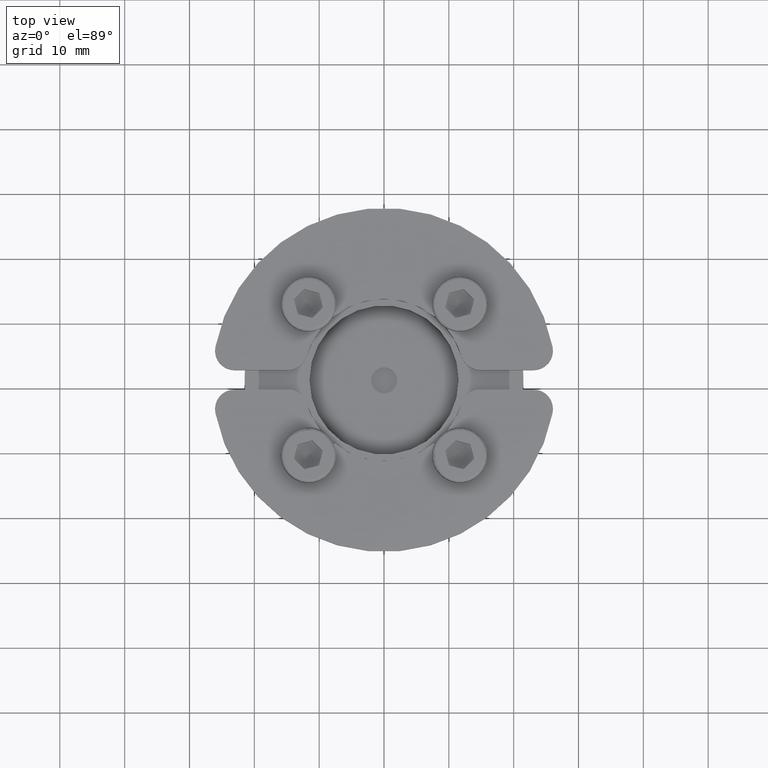
[diagram: clean part render]
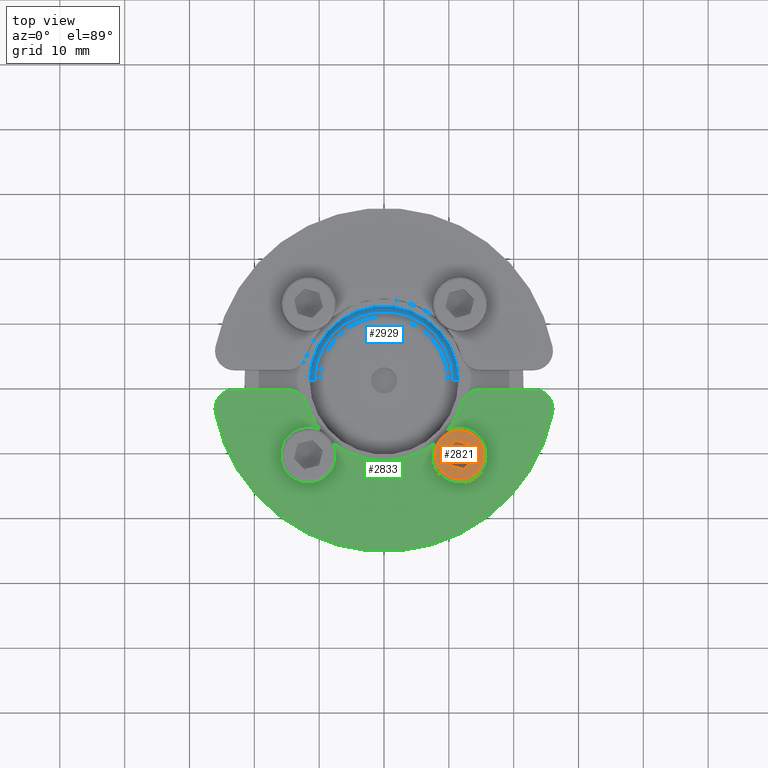
[diagram: same view with three faces highlighted in distinct colors, each labeled with its STEP entity id]
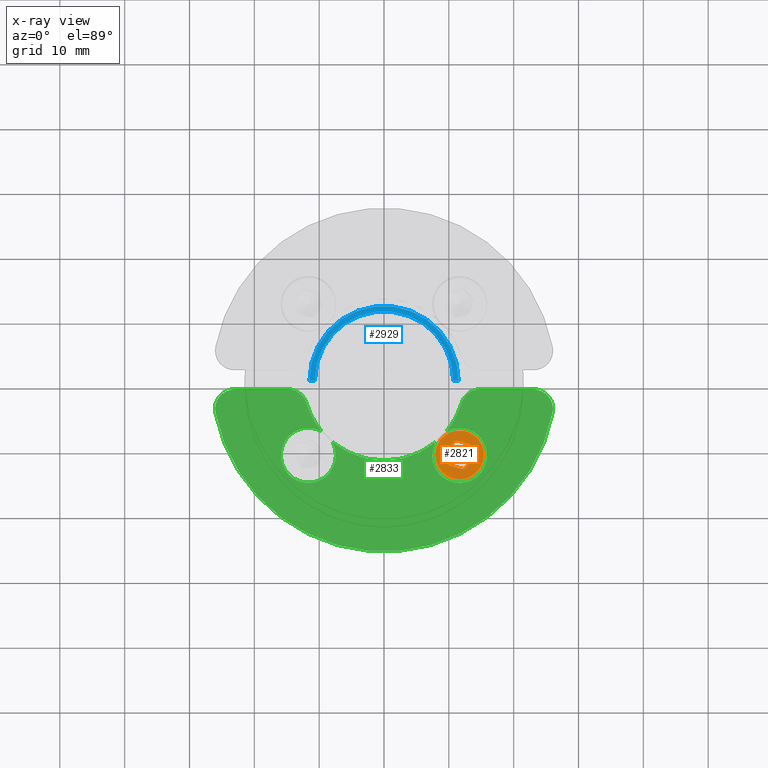
[diagram: x-ray of the same camera — body ghosted, the three highlighted faces saturated]
A machine part, top view with three faces highlighted in distinct colors.
The next image is the same camera in x-ray (body ghosted, the three faces saturated) — at least one of them is partly hidden behind the body in this view.
Their STEP definitions:

[orange] entity #2821 — the highlighted planar face has unit normal (0, -0, 1).
#19=FACE_BOUND('',#686,.T.);
#86=LINE('',#4412,#276);
#89=LINE('',#4417,#279);
#90=LINE('',#4420,#280);
#92=LINE('',#4424,#282);
#94=LINE('',#4428,#284);
#96=LINE('',#4431,#286);
#276=VECTOR('',#3447,10.);
#279=VECTOR('',#3452,10.);
#280=VECTOR('',#3455,10.);
#282=VECTOR('',#3459,10.);
#284=VECTOR('',#3463,10.);
#286=VECTOR('',#3467,10.);
#514=FACE_OUTER_BOUND('',#685,.T.);
#685=EDGE_LOOP('',(#1814,#1815));
#686=EDGE_LOOP('',(#1816,#1817,#1818,#1819,#1820,#1821));
#866=CIRCLE('',#3038,3.75);
#867=CIRCLE('',#3039,3.75);
#1075=VERTEX_POINT('',#4409);
#1076=VERTEX_POINT('',#4411);
#1077=VERTEX_POINT('',#4415);
#1078=VERTEX_POINT('',#4419);
#1079=VERTEX_POINT('',#4423);
#1080=VERTEX_POINT('',#4427);
#1088=VERTEX_POINT('',#4449);
#1089=VERTEX_POINT('',#4450);
#1339=EDGE_CURVE('',#1076,#1075,#86,.T.);
#1342=EDGE_CURVE('',#1075,#1077,#89,.T.);
#1343=EDGE_CURVE('',#1078,#1076,#90,.T.);
#1345=EDGE_CURVE('',#1079,#1078,#92,.T.);
#1347=EDGE_CURVE('',#1080,#1079,#94,.T.);
#1349=EDGE_CURVE('',#1077,#1080,#96,.T.);
#1358=EDGE_CURVE('',#1088,#1089,#866,.T.);
#1359=EDGE_CURVE('',#1089,#1088,#867,.T.);
#1814=ORIENTED_EDGE('',*,*,#1358,.F.);
#1815=ORIENTED_EDGE('',*,*,#1359,.F.);
#1816=ORIENTED_EDGE('',*,*,#1345,.T.);
#1817=ORIENTED_EDGE('',*,*,#1343,.T.);
#1818=ORIENTED_EDGE('',*,*,#1339,.T.);
#1819=ORIENTED_EDGE('',*,*,#1342,.T.);
#1820=ORIENTED_EDGE('',*,*,#1349,.T.);
#1821=ORIENTED_EDGE('',*,*,#1347,.T.);
#2530=PLANE('',#3037);
#2821=ADVANCED_FACE('',(#514,#19),#2530,.T.);
#3037=AXIS2_PLACEMENT_3D('',#4448,#3485,#3486);
#3038=AXIS2_PLACEMENT_3D('',#4451,#3487,#3488);
#3039=AXIS2_PLACEMENT_3D('',#4452,#3489,#3490);
#3447=DIRECTION('',(-0.258819045102521,0.965925826289068,6.4917715706085E-16));
#3452=DIRECTION('',(0.707106781186548,0.707106781186547,2.31843130983024E-16));
#3455=DIRECTION('',(-0.965925826289068,0.25881904510252,4.17334026077825E-16));
#3459=DIRECTION('',(-0.707106781186547,-0.707106781186548,-2.31843130983024E-16));
#3463=DIRECTION('',(0.258819045102521,-0.965925826289068,-6.4917715706085E-16));
#3467=DIRECTION('',(0.965925826289068,-0.258819045102521,-4.17334026077825E-16));
#3485=DIRECTION('center_axis',(2.71463517187339E-16,-5.99339217366573E-16,
1.));
#3486=DIRECTION('ref_axis',(-0.707106781186548,-0.707106781186547,-2.31843130983024E-16));
#3487=DIRECTION('center_axis',(-2.71463517187339E-16,5.99339217366573E-16,
-1.));
#3488=DIRECTION('ref_axis',(-0.707106781186547,0.707106781186548,6.1575051867886E-16));
#3489=DIRECTION('center_axis',(-2.71463517187339E-16,5.99339217366573E-16,
-1.));
#3490=DIRECTION('ref_axis',(-0.707106781186547,0.707106781186548,6.1575051867886E-16));
#4409=CARTESIAN_POINT('',(9.43655174627722,-11.0695449081327,7.5));
#4411=CARTESIAN_POINT('',(10.0342687277226,-13.3002550514335,7.5));
#4412=CARTESIAN_POINT('',(9.58598099163857,-11.6272224439579,7.5));
#4415=CARTESIAN_POINT('',(11.0695449081327,-9.43655174627722,7.5));
#4417=CARTESIAN_POINT('',(10.6612966176688,-9.84480003674108,7.5));
#4419=CARTESIAN_POINT('',(12.2649788710234,-13.8979720328789,7.5));
#4420=CARTESIAN_POINT('',(10.5919462635478,-13.4496842967948,7.5));
#4423=CARTESIAN_POINT('',(13.8979720328789,-12.2649788710234,7.5));
#4424=CARTESIAN_POINT('',(12.6732271614873,-13.489723742415,7.5));
#4427=CARTESIAN_POINT('',(13.3002550514335,-10.0342687277226,7.5));
#4428=CARTESIAN_POINT('',(13.7485427875175,-11.7073013351982,7.5));
#4431=CARTESIAN_POINT('',(12.7425775156083,-9.88483948236125,7.5));
#4448=CARTESIAN_POINT('Origin',(13.9863603805272,-13.9863603805272,7.5));
#4449=CARTESIAN_POINT('',(14.3189123190276,-14.3189123190276,7.5));
#4450=CARTESIAN_POINT('',(9.01561146012849,-14.3189123190276,7.49999999999999));
#4451=CARTESIAN_POINT('Origin',(11.667261889578,-11.667261889578,7.5));
#4452=CARTESIAN_POINT('Origin',(11.667261889578,-11.667261889578,7.5));

[blue] entity #2929 — the highlighted planar face has unit normal (0, 0, 1).
#134=LINE('',#4588,#324);
#135=LINE('',#4592,#325);
#324=VECTOR('',#3637,10.);
#325=VECTOR('',#3640,10.);
#622=FACE_OUTER_BOUND('',#799,.T.);
#799=EDGE_LOOP('',(#2342,#2343,#2344,#2345));
#991=CIRCLE('',#3271,11.5);
#992=CIRCLE('',#3272,10.68);
#1132=VERTEX_POINT('',#4586);
#1133=VERTEX_POINT('',#4587);
#1134=VERTEX_POINT('',#4589);
#1135=VERTEX_POINT('',#4591);
#1426=EDGE_CURVE('',#1132,#1133,#134,.T.);
#1428=EDGE_CURVE('',#1135,#1134,#135,.T.);
#1637=EDGE_CURVE('',#1132,#1134,#991,.T.);
#1638=EDGE_CURVE('',#1133,#1135,#992,.T.);
#2342=ORIENTED_EDGE('',*,*,#1428,.T.);
#2343=ORIENTED_EDGE('',*,*,#1637,.F.);
#2344=ORIENTED_EDGE('',*,*,#1426,.T.);
#2345=ORIENTED_EDGE('',*,*,#1638,.T.);
#2602=PLANE('',#3270);
#2929=ADVANCED_FACE('',(#622),#2602,.T.);
#3270=AXIS2_PLACEMENT_3D('',#5035,#4091,#4092);
#3271=AXIS2_PLACEMENT_3D('',#5036,#4093,#4094);
#3272=AXIS2_PLACEMENT_3D('',#5037,#4095,#4096);
#3637=DIRECTION('',(1.,-2.22044604925031E-16,0.));
#3640=DIRECTION('',(1.,-9.9579925010296E-17,0.));
#4091=DIRECTION('center_axis',(0.,0.,1.));
#4092=DIRECTION('ref_axis',(2.22044604925031E-16,1.,0.));
#4093=DIRECTION('center_axis',(0.,0.,-1.));
#4094=DIRECTION('ref_axis',(-0.999054373310961,0.0434782608695652,0.));
#4095=DIRECTION('center_axis',(0.,0.,-1.));
#4096=DIRECTION('ref_axis',(-1.,2.22044604925031E-16,0.));
#4586=CARTESIAN_POINT('',(-11.5,2.55351295663786E-15,-5.5));
#4587=CARTESIAN_POINT('',(-10.68,2.37143638059933E-15,-5.5));
#4588=CARTESIAN_POINT('',(-11.5,2.55351295663786E-15,-5.5));
#4589=CARTESIAN_POINT('',(11.5,-1.1451691376184E-15,-5.5));
#4591=CARTESIAN_POINT('',(10.68,-1.06351359910996E-15,-5.5));
#4592=CARTESIAN_POINT('',(11.5,-1.1451691376184E-15,-5.5));
#5035=CARTESIAN_POINT('Origin',(-11.09,2.4624746686186E-15,-5.5));
#5036=CARTESIAN_POINT('Origin',(0.,0.,-5.5));
#5037=CARTESIAN_POINT('Origin',(0.,0.,-5.5));

[green] entity #2833 — the highlighted planar face has unit normal (-0, 0, 1).
#103=LINE('',#4473,#293);
#109=LINE('',#4495,#299);
#293=VECTOR('',#3512,10.);
#299=VECTOR('',#3534,10.);
#526=FACE_OUTER_BOUND('',#698,.T.);
#698=EDGE_LOOP('',(#1876,#1877,#1878,#1879,#1880,#1881,#1882,#1883,#1884,
#1885,#1886,#1887,#1888,#1889));
#848=CIRCLE('',#3008,4.25);
#849=CIRCLE('',#3009,4.25);
#859=CIRCLE('',#3030,4.25);
#860=CIRCLE('',#3031,4.25);
#870=CIRCLE('',#3045,3.);
#876=CIRCLE('',#3054,3.);
#877=CIRCLE('',#3057,3.);
#879=CIRCLE('',#3060,12.5);
#880=CIRCLE('',#3061,12.5);
#881=CIRCLE('',#3062,12.5);
#883=CIRCLE('',#3065,3.);
#884=CIRCLE('',#3067,26.5);
#1058=VERTEX_POINT('',#4353);
#1059=VERTEX_POINT('',#4354);
#1060=VERTEX_POINT('',#4356);
#1081=VERTEX_POINT('',#4433);
#1082=VERTEX_POINT('',#4434);
#1083=VERTEX_POINT('',#4436);
#1090=VERTEX_POINT('',#4458);
#1091=VERTEX_POINT('',#4459);
#1096=VERTEX_POINT('',#4471);
#1101=VERTEX_POINT('',#4485);
#1102=VERTEX_POINT('',#4487);
#1104=VERTEX_POINT('',#4493);
#1105=VERTEX_POINT('',#4497);
#1107=VERTEX_POINT('',#4508);
#1318=EDGE_CURVE('',#1058,#1059,#848,.T.);
#1319=EDGE_CURVE('',#1060,#1058,#849,.T.);
#1350=EDGE_CURVE('',#1081,#1082,#859,.T.);
#1351=EDGE_CURVE('',#1083,#1081,#860,.T.);
#1362=EDGE_CURVE('',#1090,#1091,#870,.T.);
#1369=EDGE_CURVE('',#1090,#1096,#103,.T.);
#1376=EDGE_CURVE('',#1101,#1102,#876,.T.);
#1380=EDGE_CURVE('',#1101,#1104,#109,.T.);
#1381=EDGE_CURVE('',#1105,#1104,#877,.T.);
#1384=EDGE_CURVE('',#1059,#1091,#879,.T.);
#1385=EDGE_CURVE('',#1082,#1060,#880,.T.);
#1386=EDGE_CURVE('',#1105,#1083,#881,.T.);
#1388=EDGE_CURVE('',#1107,#1096,#883,.T.);
#1390=EDGE_CURVE('',#1107,#1102,#884,.T.);
#1876=ORIENTED_EDGE('',*,*,#1318,.T.);
#1877=ORIENTED_EDGE('',*,*,#1384,.T.);
#1878=ORIENTED_EDGE('',*,*,#1362,.F.);
#1879=ORIENTED_EDGE('',*,*,#1369,.T.);
#1880=ORIENTED_EDGE('',*,*,#1388,.F.);
#1881=ORIENTED_EDGE('',*,*,#1390,.T.);
#1882=ORIENTED_EDGE('',*,*,#1376,.F.);
#1883=ORIENTED_EDGE('',*,*,#1380,.T.);
#1884=ORIENTED_EDGE('',*,*,#1381,.F.);
#1885=ORIENTED_EDGE('',*,*,#1386,.T.);
#1886=ORIENTED_EDGE('',*,*,#1351,.T.);
#1887=ORIENTED_EDGE('',*,*,#1350,.T.);
#1888=ORIENTED_EDGE('',*,*,#1385,.T.);
#1889=ORIENTED_EDGE('',*,*,#1319,.T.);
#2535=PLANE('',#3068);
#2833=ADVANCED_FACE('',(#526),#2535,.T.);
#3008=AXIS2_PLACEMENT_3D('',#4355,#3412,#3413);
#3009=AXIS2_PLACEMENT_3D('',#4357,#3414,#3415);
#3030=AXIS2_PLACEMENT_3D('',#4435,#3470,#3471);
#3031=AXIS2_PLACEMENT_3D('',#4437,#3472,#3473);
#3045=AXIS2_PLACEMENT_3D('',#4460,#3501,#3502);
#3054=AXIS2_PLACEMENT_3D('',#4488,#3527,#3528);
#3057=AXIS2_PLACEMENT_3D('',#4498,#3537,#3538);
#3060=AXIS2_PLACEMENT_3D('',#4503,#3544,#3545);
#3061=AXIS2_PLACEMENT_3D('',#4504,#3546,#3547);
#3062=AXIS2_PLACEMENT_3D('',#4505,#3548,#3549);
#3065=AXIS2_PLACEMENT_3D('',#4509,#3554,#3555);
#3067=AXIS2_PLACEMENT_3D('',#4512,#3559,#3560);
#3068=AXIS2_PLACEMENT_3D('',#4513,#3561,#3562);
#3412=DIRECTION('center_axis',(4.03630783555513E-48,-1.14482437288206E-64,
-1.));
#3413=DIRECTION('ref_axis',(-0.707106781186548,-0.707106781186547,-7.31541631717831E-14));
#3414=DIRECTION('center_axis',(4.03630783555513E-48,-1.14482437288206E-64,
-1.));
#3415=DIRECTION('ref_axis',(-0.707106781186548,-0.707106781186547,-7.31541631717831E-14));
#3470=DIRECTION('center_axis',(4.03630783555513E-48,-1.14482437288206E-64,
-1.));
#3471=DIRECTION('ref_axis',(0.707106781186547,-0.707106781186548,-7.31541631717832E-14));
#3472=DIRECTION('center_axis',(4.03630783555513E-48,-1.14482437288206E-64,
-1.));
#3473=DIRECTION('ref_axis',(0.707106781186547,-0.707106781186548,-7.31541631717832E-14));
#3501=DIRECTION('center_axis',(4.03630783555513E-48,-1.14482437288206E-64,
-1.));
#3502=DIRECTION('ref_axis',(0.595683397181271,0.803219328902499,2.40436156355286E-48));
#3512=DIRECTION('',(-1.,1.22464679914735E-16,-4.03630783555513E-48));
#3527=DIRECTION('center_axis',(4.03630783555513E-48,-1.14482437288206E-64,
-1.));
#3528=DIRECTION('ref_axis',(0.77184498498796,0.635810757339741,3.11540396074084E-48));
#3534=DIRECTION('',(-1.,1.22464679914735E-16,-4.03630783555513E-48));
#3537=DIRECTION('center_axis',(4.03630783555513E-48,-1.14482437288206E-64,
-1.));
#3538=DIRECTION('ref_axis',(-0.59568339718127,0.803219328902499,-2.40436156355286E-48));
#3544=DIRECTION('center_axis',(4.03630783555513E-48,-1.14482437288206E-64,
-1.));
#3545=DIRECTION('ref_axis',(0.992773891679269,0.12,4.0071410379196E-48));
#3546=DIRECTION('center_axis',(4.03630783555513E-48,-1.14482437288206E-64,
-1.));
#3547=DIRECTION('ref_axis',(0.992773891679269,0.12,4.0071410379196E-48));
#3548=DIRECTION('center_axis',(4.03630783555513E-48,-1.14482437288206E-64,
-1.));
#3549=DIRECTION('ref_axis',(0.992773891679269,0.12,4.0071410379196E-48));
#3554=DIRECTION('center_axis',(4.03630783555513E-48,-1.14482437288206E-64,
-1.));
#3555=DIRECTION('ref_axis',(-0.77184498498796,0.635810757339742,-3.11540396074084E-48));
#3559=DIRECTION('center_axis',(-4.03630783555513E-48,1.14482437288206E-64,
1.));
#3560=DIRECTION('ref_axis',(-0.998396721156449,-0.0566037735849057,-4.02983650859633E-48));
#3561=DIRECTION('center_axis',(-4.03630783555513E-48,1.14482437288206E-64,
1.));
#3562=DIRECTION('ref_axis',(-1.,1.22464679914735E-16,-4.03630783555513E-48));
#4353=CARTESIAN_POINT('',(-14.6724657096209,-14.6724657096209,2.5));
#4354=CARTESIAN_POINT('',(-9.67741852174677,-7.91186266026861,2.5));
#4355=CARTESIAN_POINT('Origin',(-11.667261889578,-11.667261889578,2.49999999999999));
#4356=CARTESIAN_POINT('',(-7.9118626602686,-9.67741852174677,2.5));
#4357=CARTESIAN_POINT('Origin',(-11.667261889578,-11.667261889578,2.49999999999999));
#4433=CARTESIAN_POINT('',(14.6724657096209,-14.6724657096209,2.5));
#4434=CARTESIAN_POINT('',(7.91186266026861,-9.67741852174675,2.5));
#4435=CARTESIAN_POINT('Origin',(11.667261889578,-11.667261889578,2.5));
#4436=CARTESIAN_POINT('',(9.67741852174676,-7.91186266026861,2.5));
#4437=CARTESIAN_POINT('Origin',(11.667261889578,-11.667261889578,2.5));
#4458=CARTESIAN_POINT('',(-14.8323969741913,-1.5,2.5));
#4459=CARTESIAN_POINT('',(-11.9616104630575,-3.62903225806451,2.5));
#4460=CARTESIAN_POINT('Origin',(-14.8323969741913,-4.5,2.5));
#4471=CARTESIAN_POINT('',(-23.0651251893416,-1.5,2.5));
#4473=CARTESIAN_POINT('',(-12.4096736459909,-1.5,2.5));
#4485=CARTESIAN_POINT('',(23.0651251893416,-1.50000000000001,2.5));
#4487=CARTESIAN_POINT('',(26.009609256066,-5.07446808510639,2.5));
#4488=CARTESIAN_POINT('Origin',(23.0651251893416,-4.5,2.5));
#4493=CARTESIAN_POINT('',(14.8323969741913,-1.5,2.5));
#4495=CARTESIAN_POINT('',(26.4575131106459,-1.50000000000001,2.5));
#4497=CARTESIAN_POINT('',(11.9616104630575,-3.62903225806452,2.5));
#4498=CARTESIAN_POINT('Origin',(14.8323969741913,-4.5,2.5));
#4503=CARTESIAN_POINT('Origin',(-4.57966997657877E-15,1.11022302462516E-15,
2.5));
#4504=CARTESIAN_POINT('Origin',(-4.57966997657877E-15,1.11022302462516E-15,
2.5));
#4505=CARTESIAN_POINT('Origin',(-4.57966997657877E-15,1.11022302462516E-15,
2.5));
#4508=CARTESIAN_POINT('',(-26.0096092560661,-5.07446808510638,2.5));
#4509=CARTESIAN_POINT('Origin',(-23.0651251893416,-4.5,2.5));
#4512=CARTESIAN_POINT('Origin',(-4.57966997657877E-15,1.11022302462516E-15,
2.5));
#4513=CARTESIAN_POINT('Origin',(-6.43681926466103E-15,-11.4869483257793,
2.5));